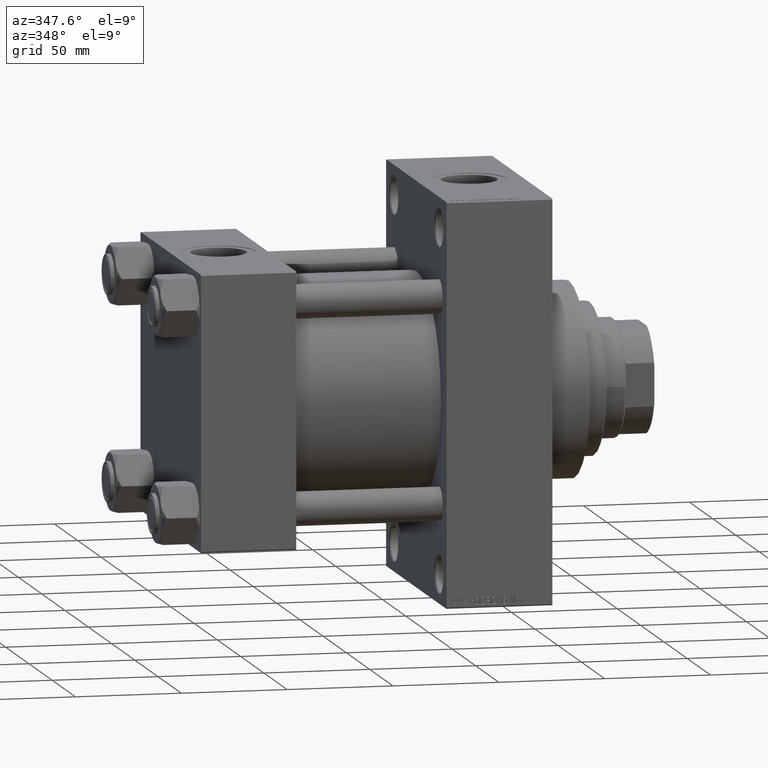
[diagram: clean part render]
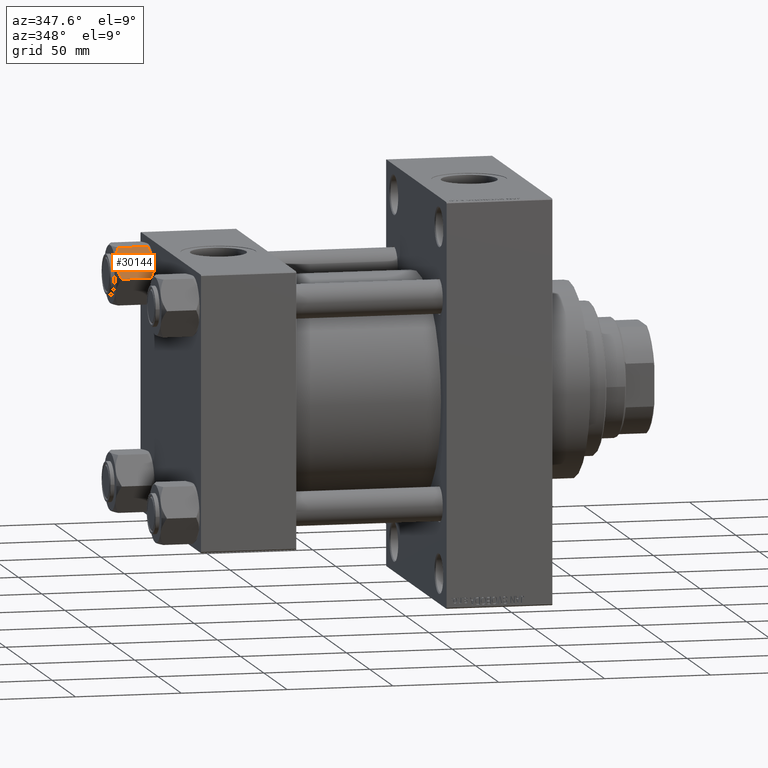
[diagram: same view with one face highlighted and labeled with its STEP entity id]
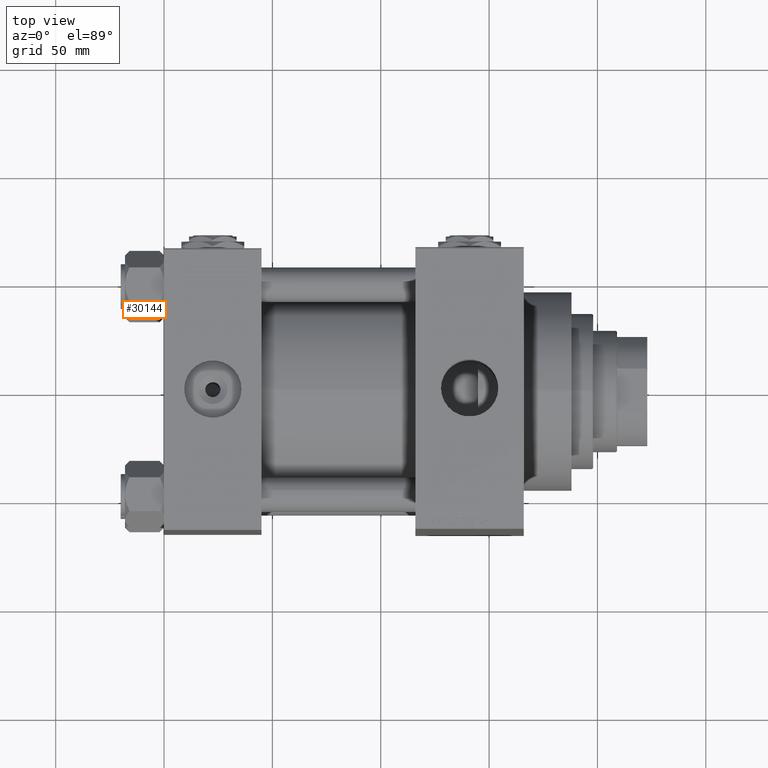
[diagram: same view with one face highlighted and labeled with its STEP entity id]
A machine part, auxiliary view. The second image highlights one B-rep face of the part: STEP entity #30144.
A second angle (top view) of the same face is appended — the face is thin or edge-on in the first view.
In plain terms, the highlighted planar face has unit normal (0, 0.866, -0.5).
Its self-contained STEP definition (entity closure, byte-faithful):
#869 = CARTESIAN_POINT ( 'NONE',  ( -10.40215497533437805, -9.037572688741340343, -0.1971866459924474513 ) ) ;
#1585 = VECTOR ( 'NONE', #18346, 999.9999999999998863 ) ;
#2761 = VECTOR ( 'NONE', #33426, 1000.000000000000000 ) ;
#3120 = B_SPLINE_CURVE_WITH_KNOTS ( 'NONE', 3,
 ( #13149, #39405, #28557, #4835, #20216, #45181, #29539, #44933 ),
 .UNSPECIFIED., .F., .F.,
 ( 4, 2, 2, 4 ),
 ( 4.472842641813524291E-07, 0.003945636373369312659, 0.005918230917921874813, 0.007890825462474436100 ),
 .UNSPECIFIED. ) ;
#3255 = EDGE_CURVE ( 'NONE', #25933, #39475, #6247, .T. ) ;
#4044 = LINE ( 'NONE', #22970, #24193 ) ;
#4835 = CARTESIAN_POINT ( 'NONE',  ( -10.06459418565412456, -9.622245127110602425, -17.61639331488794014 ) ) ;
#5137 = CARTESIAN_POINT ( 'NONE',  ( -9.124083218049237942, -11.25125790807803838, -0.9473872146228101698 ) ) ;
#6003 = EDGE_CURVE ( 'NONE', #30587, #16361, #4044, .T. ) ;
#6180 = LINE ( 'NONE', #13995, #2761 ) ;
#6247 = LINE ( 'NONE', #21632, #1585 ) ;
#6687 = AXIS2_PLACEMENT_3D ( 'NONE', #12447, #31884, #40435 ) ;
#8553 = CARTESIAN_POINT ( 'NONE',  ( -7.809999999999999609, -13.52731680711293727, -18.00000000000000000 ) ) ;
#8630 = CARTESIAN_POINT ( 'NONE',  ( -13.36540581434588226, -3.905071680002305534, -0.3836066851120543686 ) ) ;
#9289 = CARTESIAN_POINT ( 'NONE',  ( -7.903528262322674358, -13.36532110482643354, -2.000000000000000000 ) ) ;
#10497 = CARTESIAN_POINT ( 'NONE',  ( -7.809999999999999609, -13.52731680711293727, -16.00000000000000000 ) ) ;
#11190 = CARTESIAN_POINT ( 'NONE',  ( -15.61999999999999567, 8.023367828467702033E-15, -16.00000000000000000 ) ) ;
#11591 = LINE ( 'NONE', #8553, #49648 ) ;
#12084 = DIRECTION ( 'NONE',  ( -0.000000000000000000, -0.000000000000000000, 1.000000000000000000 ) ) ;
#12447 = CARTESIAN_POINT ( 'NONE',  ( -7.809999999999999609, -13.52731680711293727, -18.00000000000000000 ) ) ;
#12821 = B_SPLINE_CURVE_WITH_KNOTS ( 'NONE', 3,
 ( #35429, #27609, #869, #16246, #5137, #25050, #24309, #28604 ),
 .UNSPECIFIED., .F., .F.,
 ( 4, 2, 2, 4 ),
 ( 0.007890825462474451713, 0.01181022244528557794, 0.01376992093669113758, 0.01572961942809669722 ),
 .UNSPECIFIED. ) ;
#12932 = ORIENTED_EDGE ( 'NONE', *, *, #34435, .F. ) ;
#12945 = DIRECTION ( 'NONE',  ( -0.4999999999999994449, 0.8660254037844390407, 0.000000000000000000 ) ) ;
#13126 = VECTOR ( 'NONE', #28349, 999.9999999999998863 ) ;
#13149 = CARTESIAN_POINT ( 'NONE',  ( -7.903528262322674358, -13.36532110482643354, -16.00000000000000000 ) ) ;
#13473 = CARTESIAN_POINT ( 'NONE',  ( -15.52647173767732980, -0.1619957022864788043, -16.00000000000000000 ) ) ;
#13839 = CARTESIAN_POINT ( 'NONE',  ( -7.809999999999999609, -13.52731680711293727, -1.999999999999998224 ) ) ;
#13995 = CARTESIAN_POINT ( 'NONE',  ( -15.61999999999999567, 8.023367828467702033E-15, -18.00000000000000000 ) ) ;
#16246 = CARTESIAN_POINT ( 'NONE',  ( -9.439480280627259745, -10.70497417113492311, -0.7317196846281081024 ) ) ;
#16361 = VERTEX_POINT ( 'NONE', #13839 ) ;
#17565 = CARTESIAN_POINT ( 'NONE',  ( -14.30591678195076533, -2.276058899034876681, -17.05261278537718894 ) ) ;
#18346 = DIRECTION ( 'NONE',  ( -0.4999999999999994449, 0.8660254037844390407, 0.000000000000000000 ) ) ;
#19413 = DIRECTION ( 'NONE',  ( 0.4999999999999994449, -0.8660254037844390407, 0.000000000000000000 ) ) ;
#19522 = CARTESIAN_POINT ( 'NONE',  ( -7.903528262322674358, -13.36532110482643354, -16.00000000000000000 ) ) ;
#20216 = CARTESIAN_POINT ( 'NONE',  ( -10.38662926516872353, -9.064464007571846338, -17.75691532989871746 ) ) ;
#21632 = CARTESIAN_POINT ( 'NONE',  ( -7.809999999999999609, -13.52731680711293727, -16.00000000000000000 ) ) ;
#21666 = ORIENTED_EDGE ( 'NONE', *, *, #41782, .F. ) ;
#21850 = CARTESIAN_POINT ( 'NONE',  ( -15.22736220980736199, -0.6800686015852018818, -16.29368822085855584 ) ) ;
#21992 = ORIENTED_EDGE ( 'NONE', *, *, #39499, .F. ) ;
#22849 = CARTESIAN_POINT ( 'NONE',  ( -12.38621571200405391, -5.601078687526916511, -0.05089381635300645190 ) ) ;
#22970 = CARTESIAN_POINT ( 'NONE',  ( -7.809999999999999609, -13.52731680711293727, -1.999999999999998224 ) ) ;
#23742 = ORIENTED_EDGE ( 'NONE', *, *, #42739, .T. ) ;
#24193 = VECTOR ( 'NONE', #19413, 999.9999999999998863 ) ;
#24309 = CARTESIAN_POINT ( 'NONE',  ( -8.202637790192643052, -12.84724820552771085, -1.706311779141444829 ) ) ;
#25050 = CARTESIAN_POINT ( 'NONE',  ( -8.506059550806618574, -12.32170630002230816, -1.434462921875002461 ) ) ;
#25638 = CARTESIAN_POINT ( 'NONE',  ( -13.02784502466562699, -4.489744118371570281, -17.80281335400755083 ) ) ;
#25933 = VERTEX_POINT ( 'NONE', #10497 ) ;
#26482 = ORIENTED_EDGE ( 'NONE', *, *, #30250, .F. ) ;
#26512 = VERTEX_POINT ( 'NONE', #40661 ) ;
#27609 = CARTESIAN_POINT ( 'NONE',  ( -11.05297796109637787, -7.910314210667872103, 9.086969458144130882E-15 ) ) ;
#27856 = CARTESIAN_POINT ( 'NONE',  ( -7.809999999999999609, -13.52731680711293727, -16.00000000000000000 ) ) ;
#28349 = DIRECTION ( 'NONE',  ( 0.4999999999999994449, -0.8660254037844390407, 0.000000000000000000 ) ) ;
#28557 = CARTESIAN_POINT ( 'NONE',  ( -9.114548888011787753, -11.26777185211903820, -17.08577173959730899 ) ) ;
#28604 = CARTESIAN_POINT ( 'NONE',  ( -7.903528262322674358, -13.36532110482643354, -2.000000000000000000 ) ) ;
#28642 = EDGE_CURVE ( 'NONE', #39475, #40140, #3120, .T. ) ;
#29185 = CARTESIAN_POINT ( 'NONE',  ( -15.52647173767732980, -0.1619957022864788043, -16.00000000000000000 ) ) ;
#29409 = VECTOR ( 'NONE', #12945, 999.9999999999998863 ) ;
#29539 = CARTESIAN_POINT ( 'NONE',  ( -11.38181071908714692, -7.340759166634859945, -18.00000000000001421 ) ) ;
#30144 = ADVANCED_FACE ( 'NONE', ( #43993 ), #35672, .F. ) ;
#30250 = EDGE_CURVE ( 'NONE', #37606, #40278, #39953, .T. ) ;
#30427 = CARTESIAN_POINT ( 'NONE',  ( -14.31545111198821552, -2.259544954993873311, -0.9142282604026915616 ) ) ;
#30587 = VERTEX_POINT ( 'NONE', #9289 ) ;
#31014 = ORIENTED_EDGE ( 'NONE', *, *, #3255, .F. ) ;
#31884 = DIRECTION ( 'NONE',  ( 0.8660254037844390407, 0.4999999999999994449, 0.000000000000000000 ) ) ;
#32955 = CARTESIAN_POINT ( 'NONE',  ( -14.92394044919338825, -1.205610507090610461, -16.56553707812500065 ) ) ;
#33426 = DIRECTION ( 'NONE',  ( -0.000000000000000000, -0.000000000000000000, 1.000000000000000000 ) ) ;
#33908 = ORIENTED_EDGE ( 'NONE', *, *, #36710, .F. ) ;
#34435 = EDGE_CURVE ( 'NONE', #40278, #26512, #39532, .T. ) ;
#34624 = CARTESIAN_POINT ( 'NONE',  ( -15.52647173767732980, -0.1619957022864788043, -2.000000000000000000 ) ) ;
#35429 = CARTESIAN_POINT ( 'NONE',  ( -11.71500000000000874, -6.763658403556459753, 0.000000000000000000 ) ) ;
#35642 = CARTESIAN_POINT ( 'NONE',  ( -13.04337073483128329, -4.462852799541069615, -0.2430846701012900901 ) ) ;
#35672 = PLANE ( 'NONE',  #6687 ) ;
#35889 = CARTESIAN_POINT ( 'NONE',  ( -14.92760668674625002, -1.199260397376427090, -1.411989271640064825 ) ) ;
#36139 = B_SPLINE_CURVE_WITH_KNOTS ( 'NONE', 3,
 ( #36510, #40532, #25638, #44582, #17565, #32955, #21850, #29185 ),
 .UNSPECIFIED., .F., .F.,
 ( 4, 2, 2, 4 ),
 ( 0.007890825462474436100, 0.01181022244528555712, 0.01376992093669111850, 0.01572961942809667987 ),
 .UNSPECIFIED. ) ;
#36510 = CARTESIAN_POINT ( 'NONE',  ( -11.71500000000000874, -6.763658403556459753, -18.00000000000000000 ) ) ;
#36660 = CARTESIAN_POINT ( 'NONE',  ( -7.809999999999999609, -13.52731680711293727, -1.999999999999998224 ) ) ;
#36664 = LINE ( 'NONE', #27856, #29409 ) ;
#36710 = EDGE_CURVE ( 'NONE', #37752, #37606, #6180, .T. ) ;
#37606 = VERTEX_POINT ( 'NONE', #40238 ) ;
#37752 = VERTEX_POINT ( 'NONE', #11190 ) ;
#39405 = CARTESIAN_POINT ( 'NONE',  ( -8.502393313253753249, -12.32805640973648664, -16.58801072835993651 ) ) ;
#39475 = VERTEX_POINT ( 'NONE', #19522 ) ;
#39499 = EDGE_CURVE ( 'NONE', #26512, #30587, #12821, .T. ) ;
#39532 = B_SPLINE_CURVE_WITH_KNOTS ( 'NONE', 3,
 ( #47004, #35889, #30427, #8630, #35642, #22849, #47252, #43463 ),
 .UNSPECIFIED., .F., .F.,
 ( 4, 2, 2, 4 ),
 ( 4.472842641982724416E-07, 0.003945636373369324802, 0.005918230917921887824, 0.007890825462474451713 ),
 .UNSPECIFIED. ) ;
#39551 = EDGE_CURVE ( 'NONE', #42058, #37752, #36664, .T. ) ;
#39953 = LINE ( 'NONE', #36660, #13126 ) ;
#40140 = VERTEX_POINT ( 'NONE', #48038 ) ;
#40238 = CARTESIAN_POINT ( 'NONE',  ( -15.61999999999999567, 8.023367828467702033E-15, -1.999999999999998224 ) ) ;
#40278 = VERTEX_POINT ( 'NONE', #34624 ) ;
#40435 = DIRECTION ( 'NONE',  ( -0.4999999999999993894, 0.8660254037844389297, 0.000000000000000000 ) ) ;
#40532 = CARTESIAN_POINT ( 'NONE',  ( -12.37702203890362540, -5.617002596445037632, -18.00000000000000711 ) ) ;
#40661 = CARTESIAN_POINT ( 'NONE',  ( -11.71500000000000874, -6.763658403556459753, 0.000000000000000000 ) ) ;
#41782 = EDGE_CURVE ( 'NONE', #40140, #42058, #36139, .T. ) ;
#42058 = VERTEX_POINT ( 'NONE', #13473 ) ;
#42739 = EDGE_CURVE ( 'NONE', #25933, #16361, #11591, .T. ) ;
#42920 = ORIENTED_EDGE ( 'NONE', *, *, #28642, .F. ) ;
#43134 = ORIENTED_EDGE ( 'NONE', *, *, #6003, .F. ) ;
#43463 = CARTESIAN_POINT ( 'NONE',  ( -11.71500000000000874, -6.763658403556459753, 0.000000000000000000 ) ) ;
#43993 = FACE_OUTER_BOUND ( 'NONE', #48599, .T. ) ;
#44582 = CARTESIAN_POINT ( 'NONE',  ( -13.99051971937274530, -2.822342635977989289, -17.26828031537188934 ) ) ;
#44933 = CARTESIAN_POINT ( 'NONE',  ( -11.71500000000000874, -6.763658403556459753, -18.00000000000000000 ) ) ;
#45181 = CARTESIAN_POINT ( 'NONE',  ( -11.04378428799595468, -7.926238119585997666, -17.94910618364700028 ) ) ;
#47004 = CARTESIAN_POINT ( 'NONE',  ( -15.52647173767732980, -0.1619957022864788043, -2.000000000000000000 ) ) ;
#47252 = CARTESIAN_POINT ( 'NONE',  ( -12.04818928091285635, -6.186557640478051567, 9.103910117089220044E-15 ) ) ;
#48038 = CARTESIAN_POINT ( 'NONE',  ( -11.71500000000000874, -6.763658403556459753, -18.00000000000000000 ) ) ;
#48599 = EDGE_LOOP ( 'NONE', ( #31014, #23742, #43134, #21992, #12932, #26482, #33908, #49800, #21666, #42920 ) ) ;
#49648 = VECTOR ( 'NONE', #12084, 1000.000000000000000 ) ;
#49800 = ORIENTED_EDGE ( 'NONE', *, *, #39551, .F. ) ;